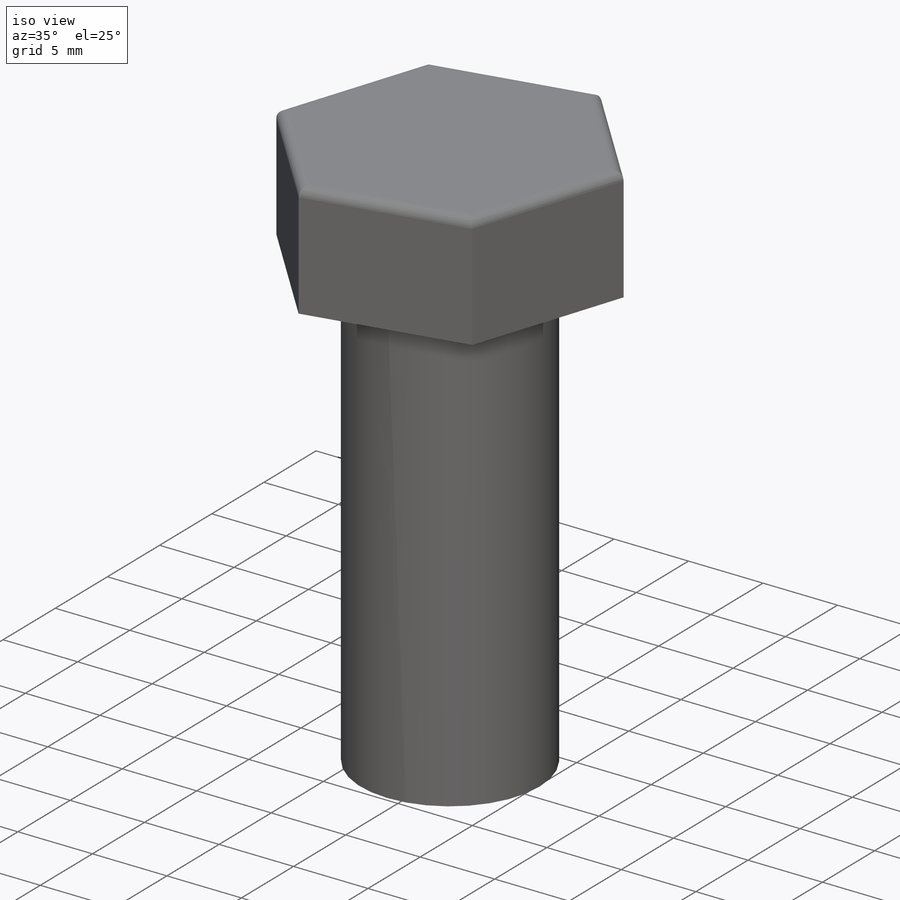
[diagram: iso view]
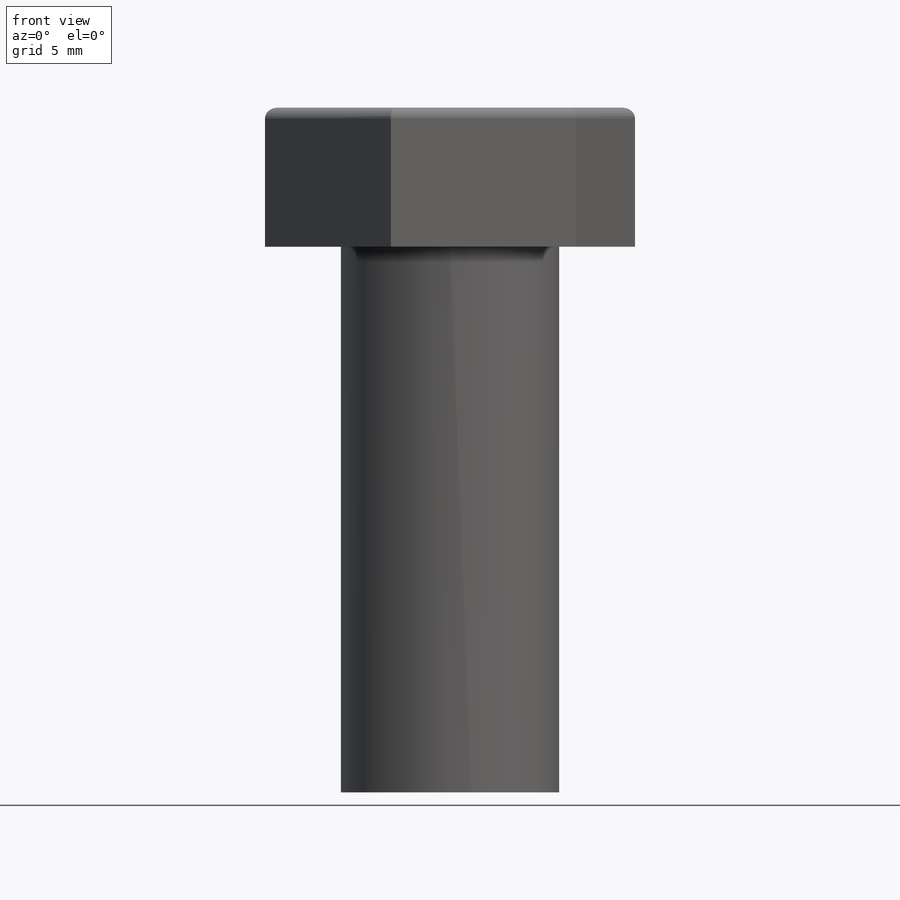
[diagram: front view]
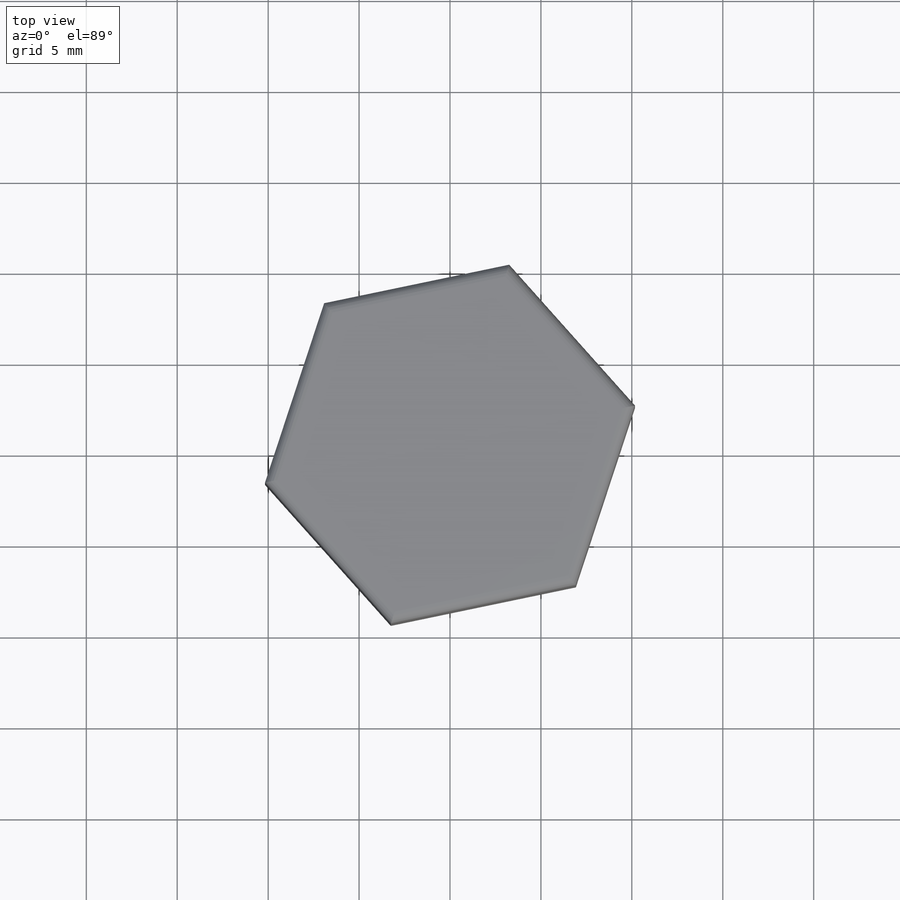
[diagram: top view]
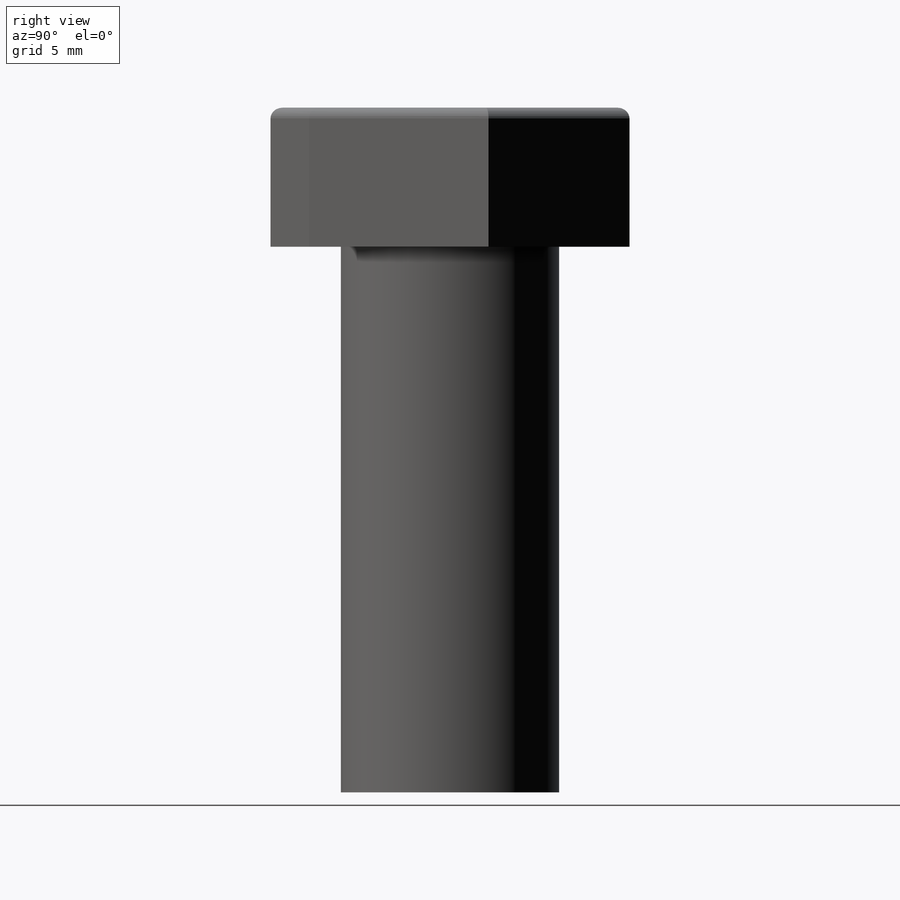
[diagram: right view]
SOLIDWORKS PART (.sldprt)
format: sldprt  version: not decoded by parser v0  size: 125,952 bytes
history: native  units: mm
features: plane x3, sketch x2, extrude x2, material x1, thread x1, fillet x1 (+13 scaffold rows collapsed)
feature tree (23):
  scaffold x13  (default folders/planes/origin — collapsed)
  material  "材质 <未指定>"
  plane  "前视基准面"
  plane  "上视基准面"
  plane  "右视基准面"
  sketch  "草图1"  dims[D1=18.0mm]
  extrude  "凸台-拉伸1"  Depth=7.65mm
  sketch  "草图2"  dims[D1=12.0mm]
  extrude  "凸台-拉伸2"  [1 undecoded]
  thread  "装饰螺纹线1"  Diameter=20mm  [1 undecoded]
  fillet  "圆角1"  Radius=0.6mm
decode coverage: 5 of 6 modeling features carry decoded parameters
note: 2 parameter values undecoded
note: suppression state not decoded; provenance and decode notes live in map.json
